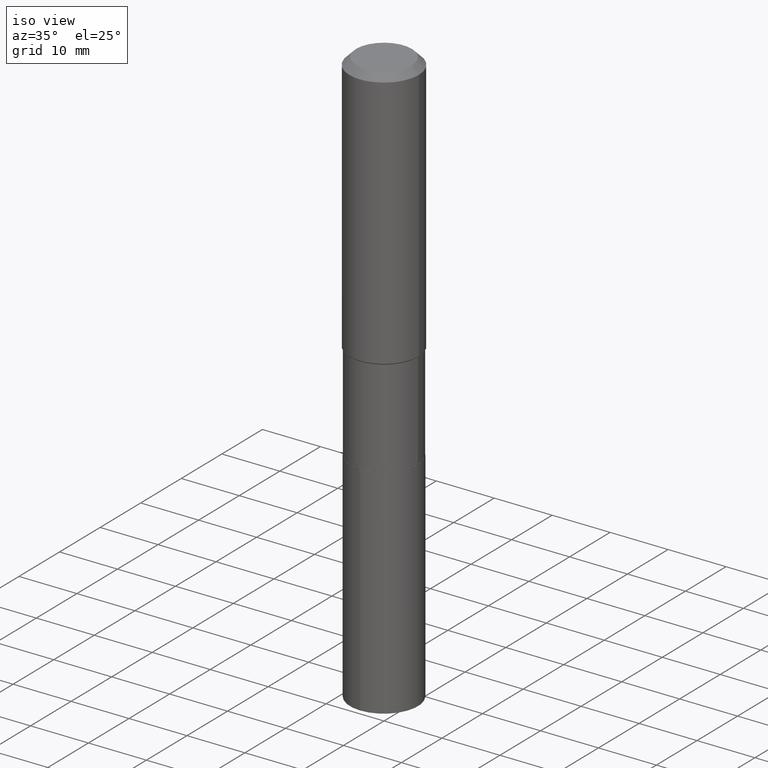
[diagram: clean part render]
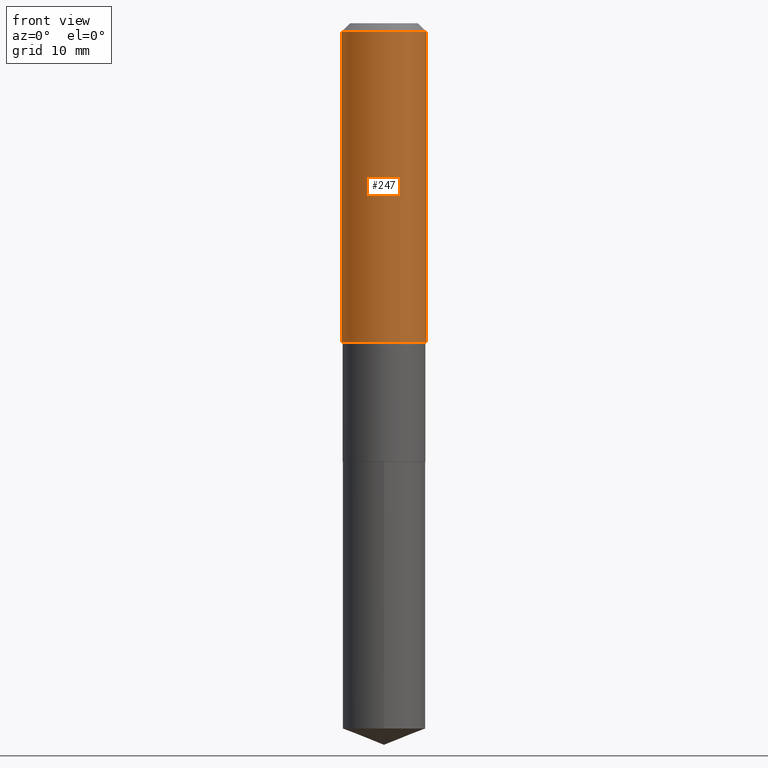
[diagram: tour spotlight — one face highlighted and labeled with its STEP entity id]
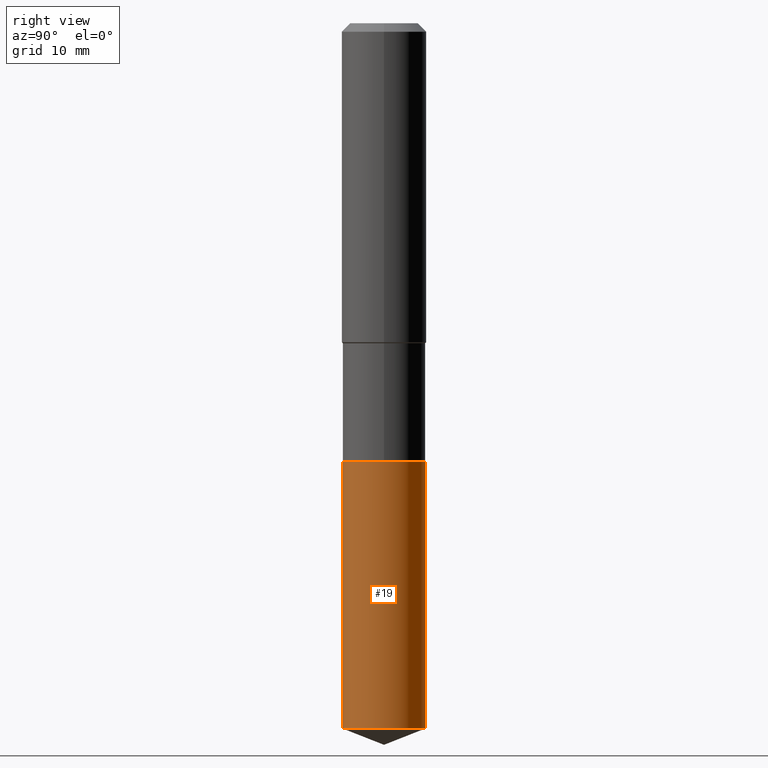
[diagram: tour spotlight — one face highlighted and labeled with its STEP entity id]
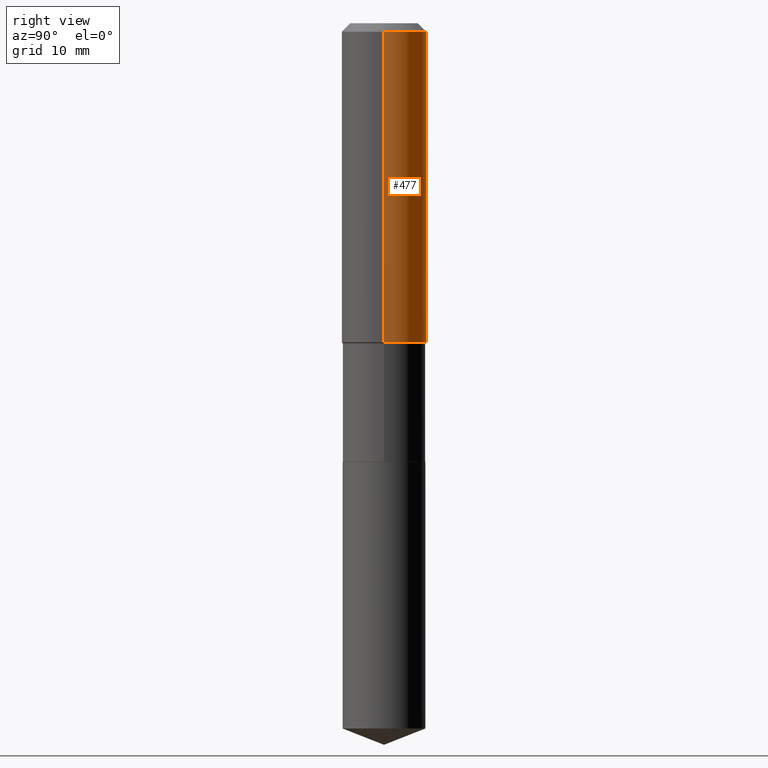
[diagram: tour spotlight — one face highlighted and labeled with its STEP entity id]
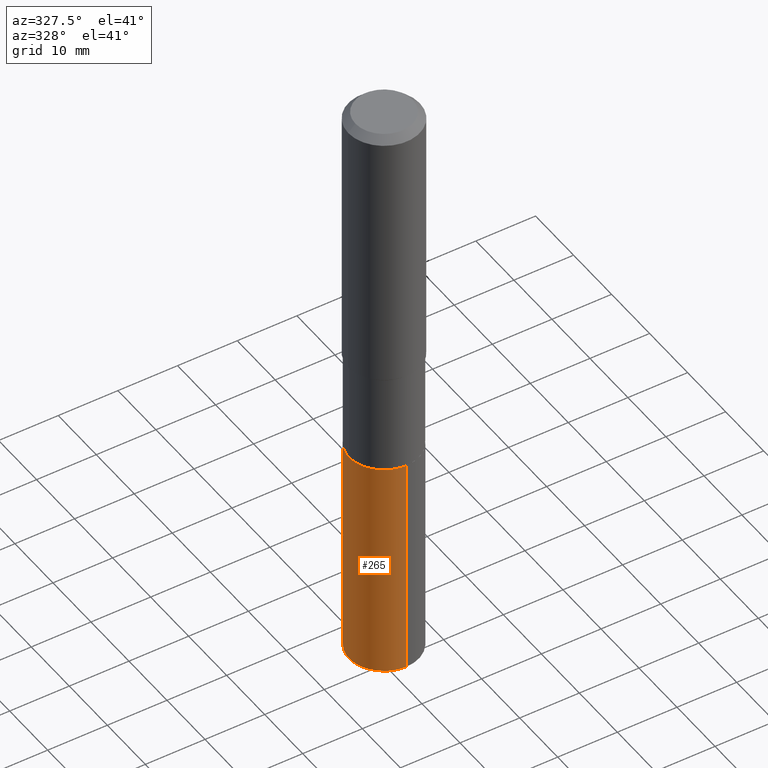
[diagram: tour spotlight — one face highlighted and labeled with its STEP entity id]
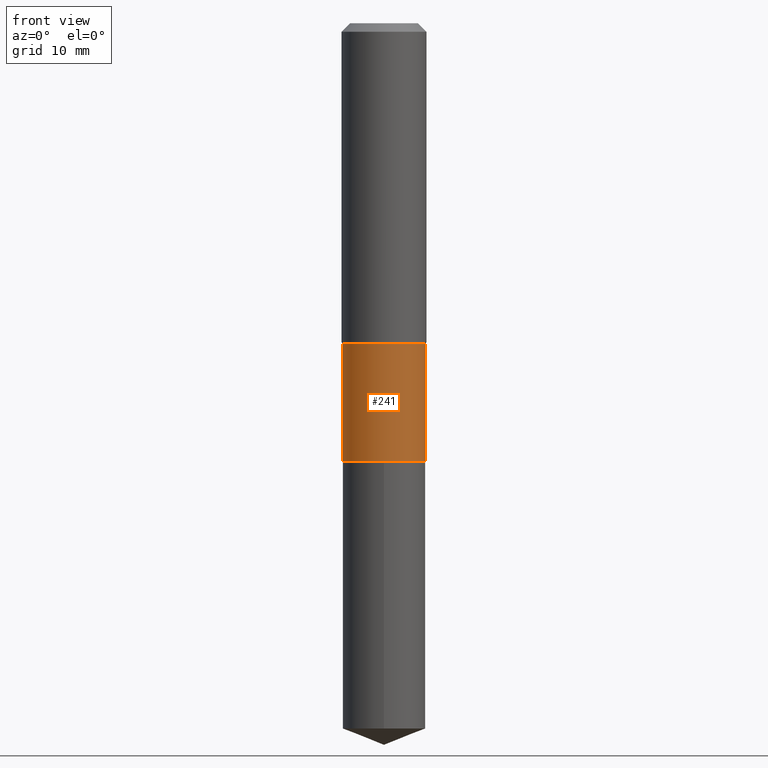
[diagram: tour spotlight — one face highlighted and labeled with its STEP entity id]
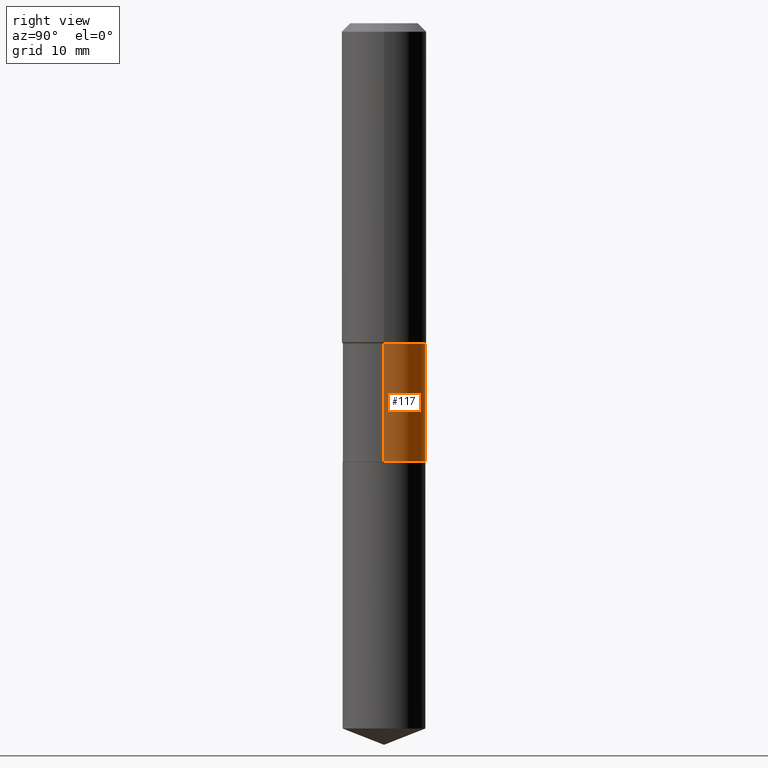
[diagram: tour spotlight — one face highlighted and labeled with its STEP entity id]
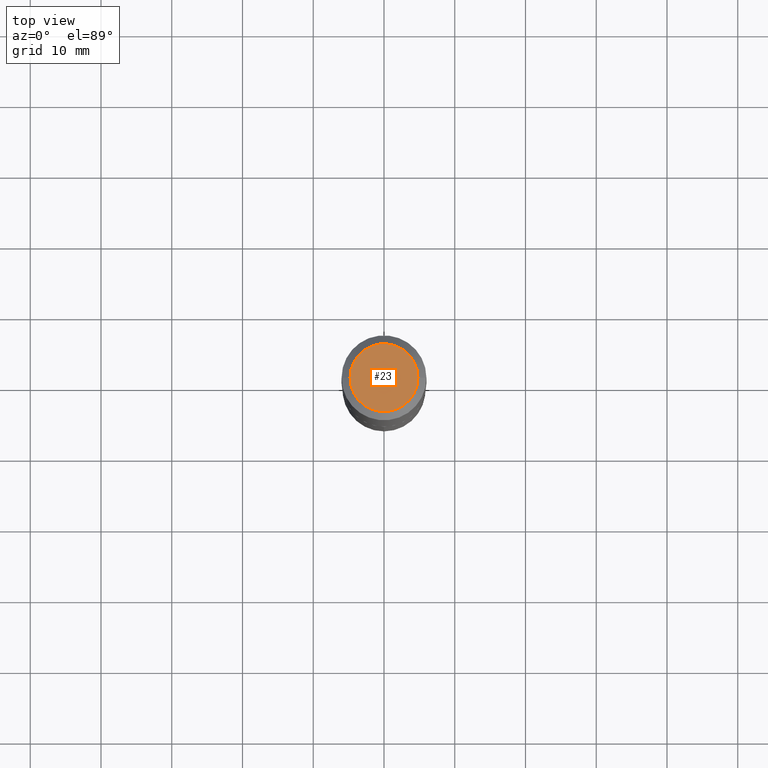
[diagram: tour spotlight — one face highlighted and labeled with its STEP entity id]
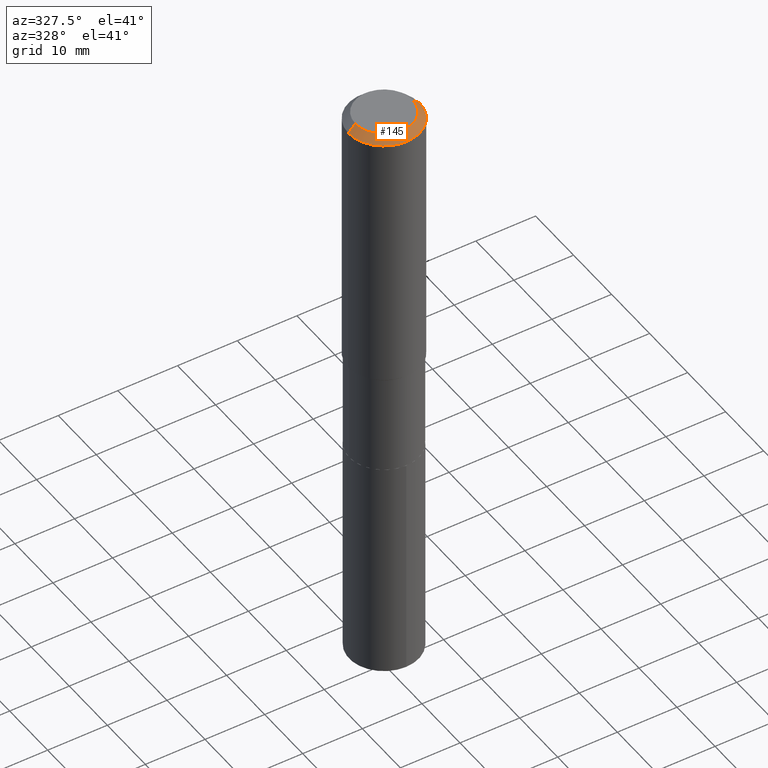
[diagram: tour spotlight — one face highlighted and labeled with its STEP entity id]
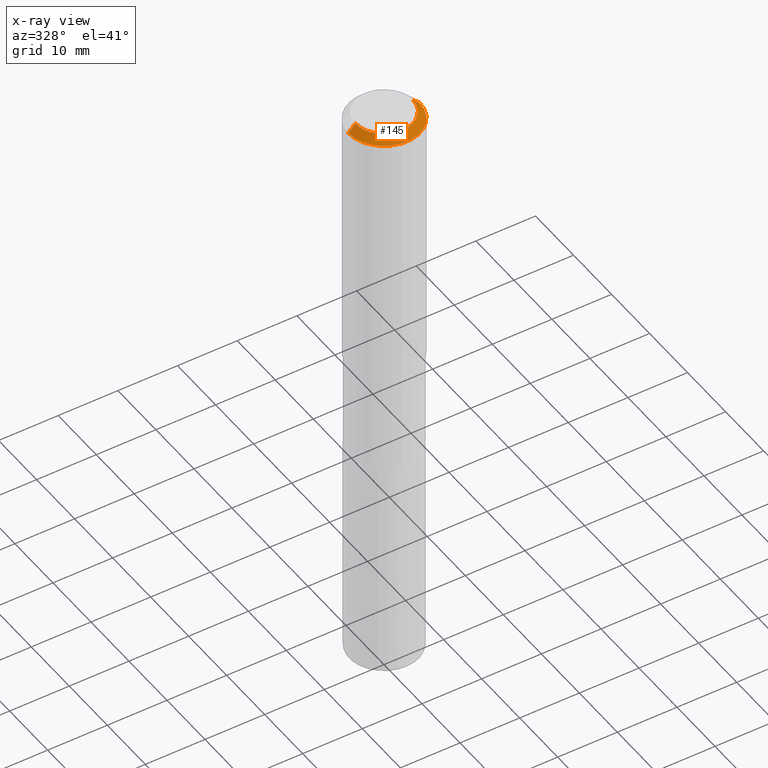
[diagram: x-ray of the same camera — body ghosted, this tour face saturated]
A machine part: a face-by-face anatomy tour. The part has 17 B-rep faces; the first image is the clean iso view, then the 8 largest visible faces are spotlighted one at a time (largest first), each with its STEP entity span.

Face 1 — front view, entity #247. In plain terms, the highlighted cylindrical surface (partial cylindrical patch) has radius 5.9995 mm, axis along (-0, 0, 1).
Definition (entity closure, byte-faithful):
#1 = CYLINDRICAL_SURFACE ( 'NONE', #33, 0.2362000000000001043 ) ;
#2 = ORIENTED_EDGE ( 'NONE', *, *, #67, .T. ) ;
#13 = DIRECTION ( 'NONE',  ( -2.445468806185136877E-29, 3.491481338843145188E-15, 1.000000000000000000 ) ) ;
#20 = CARTESIAN_POINT ( 'NONE',  ( 0.2362000000000001043, -1.649375784469496920E-15, 1.151752954443000508E-29 ) ) ;
#33 = AXIS2_PLACEMENT_3D ( 'NONE', #453, #89, #116 ) ;
#39 = FACE_OUTER_BOUND ( 'NONE', #450, .T. ) ;
#56 = DIRECTION ( 'NONE',  ( -2.445468806185136877E-29, 3.491481338843145188E-15, 1.000000000000000000 ) ) ;
#60 = VERTEX_POINT ( 'NONE', #429 ) ;
#67 = EDGE_CURVE ( 'NONE', #199, #344, #95, .T. ) ;
#84 = EDGE_CURVE ( 'NONE', #413, #344, #274, .T. ) ;
#89 = DIRECTION ( 'NONE',  ( -2.445468806185136597E-29, 3.491481338843145583E-15, 1.000000000000000000 ) ) ;
#95 = LINE ( 'NONE', #20, #424 ) ;
#101 = CARTESIAN_POINT ( 'NONE',  ( 0.2362000000000002153, -7.847802605317732432E-15, -1.775299999999999434 ) ) ;
#116 = DIRECTION ( 'NONE',  ( 1.000000000000000000, -6.982962677686266711E-15, 4.876176775795935793E-29 ) ) ;
#149 = ORIENTED_EDGE ( 'NONE', *, *, #84, .F. ) ;
#153 = CARTESIAN_POINT ( 'NONE',  ( 0.2361999999999999933, -1.814313362916447440E-15, -0.04724000000000028177 ) ) ;
#159 = ORIENTED_EDGE ( 'NONE', *, *, #488, .F. ) ;
#168 = DIRECTION ( 'NONE',  ( 1.000000000000000000, -6.982962677686266711E-15, 0.000000000000000000 ) ) ;
#177 = AXIS2_PLACEMENT_3D ( 'NONE', #270, #351, #168 ) ;
#199 = VERTEX_POINT ( 'NONE', #101 ) ;
#247 = ADVANCED_FACE ( 'NONE', ( #39 ), #1, .T. ) ;
#270 = CARTESIAN_POINT ( 'NONE',  ( 4.341440771620472019E-29, -6.198426820848235118E-15, -1.775299999999999434 ) ) ;
#274 = CIRCLE ( 'NONE', #441, 0.2361999999999999933 ) ;
#277 = CARTESIAN_POINT ( 'NONE',  ( -0.2361999999999999933, -1.503380257782235439E-15, -0.04724000000000028177 ) ) ;
#282 = CARTESIAN_POINT ( 'NONE',  ( -0.2362000000000001043, 1.678301941865357380E-15, -1.161852468318209317E-29 ) ) ;
#336 = ORIENTED_EDGE ( 'NONE', *, *, #432, .T. ) ;
#344 = VERTEX_POINT ( 'NONE', #153 ) ;
#351 = DIRECTION ( 'NONE',  ( -2.445468806185136597E-29, 3.491481338843145583E-15, 1.000000000000000000 ) ) ;
#372 = CIRCLE ( 'NONE', #177, 0.2362000000000002153 ) ;
#399 = DIRECTION ( 'NONE',  ( 1.000000000000000000, -6.982962677686266711E-15, 0.000000000000000000 ) ) ;
#402 = CARTESIAN_POINT ( 'NONE',  ( 1.155239464041865506E-30, -1.649375784469511859E-16, -0.04724000000000028177 ) ) ;
#413 = VERTEX_POINT ( 'NONE', #277 ) ;
#424 = VECTOR ( 'NONE', #13, 39.37007874015748143 ) ;
#429 = CARTESIAN_POINT ( 'NONE',  ( -0.2362000000000002153, -4.520124878982877146E-15, -1.775299999999999434 ) ) ;
#432 = EDGE_CURVE ( 'NONE', #60, #199, #372, .T. ) ;
#441 = AXIS2_PLACEMENT_3D ( 'NONE', #402, #471, #399 ) ;
#448 = VECTOR ( 'NONE', #56, 39.37007874015748143 ) ;
#450 = EDGE_LOOP ( 'NONE', ( #159, #336, #2, #149 ) ) ;
#453 = CARTESIAN_POINT ( 'NONE',  ( 0.000000000000000000, 0.000000000000000000, 0.000000000000000000 ) ) ;
#463 = LINE ( 'NONE', #282, #448 ) ;
#471 = DIRECTION ( 'NONE',  ( -2.445468806185136597E-29, 3.491481338843145583E-15, 1.000000000000000000 ) ) ;
#488 = EDGE_CURVE ( 'NONE', #60, #413, #463, .T. ) ;

Face 2 — right view, entity #19. In plain terms, the highlighted cylindrical surface (partial cylindrical patch) has radius 5.8496 mm, axis along (-0, 0, 1).
Definition (entity closure, byte-faithful):
#6 = AXIS2_PLACEMENT_3D ( 'NONE', #352, #126, #206 ) ;
#17 = EDGE_LOOP ( 'NONE', ( #470, #378, #46, #83 ) ) ;
#19 = ADVANCED_FACE ( 'NONE', ( #360 ), #52, .T. ) ;
#27 = LINE ( 'NONE', #31, #235 ) ;
#31 = CARTESIAN_POINT ( 'NONE',  ( -1.608176304671087313E-15, -0.2303000000000085257, -2.440899999999999181 ) ) ;
#46 = ORIENTED_EDGE ( 'NONE', *, *, #110, .F. ) ;
#49 = VERTEX_POINT ( 'NONE', #310 ) ;
#52 = CYLINDRICAL_SURFACE ( 'NONE', #6, 0.2303000000000000047 ) ;
#65 = AXIS2_PLACEMENT_3D ( 'NONE', #182, #321, #253 ) ;
#66 = CARTESIAN_POINT ( 'NONE',  ( 1.636379920455606805E-15, 0.2302999999999914560, -2.440900000000000514 ) ) ;
#83 = ORIENTED_EDGE ( 'NONE', *, *, #152, .F. ) ;
#91 = VERTEX_POINT ( 'NONE', #66 ) ;
#110 = EDGE_CURVE ( 'NONE', #131, #91, #299, .T. ) ;
#122 = DIRECTION ( 'NONE',  ( -2.445399602320894689E-29, 3.491580442715579660E-15, 1.000000000000000000 ) ) ;
#126 = DIRECTION ( 'NONE',  ( -2.445399602320894408E-29, 3.491580442715579660E-15, 1.000000000000000000 ) ) ;
#131 = VERTEX_POINT ( 'NONE', #291 ) ;
#135 = AXIS2_PLACEMENT_3D ( 'NONE', #175, #438, #382 ) ;
#152 = EDGE_CURVE ( 'NONE', #454, #131, #27, .T. ) ;
#175 = CARTESIAN_POINT ( 'NONE',  ( 9.598319362499793207E-29, -1.370414994418415615E-14, -3.924982417465879614 ) ) ;
#182 = CARTESIAN_POINT ( 'NONE',  ( 5.969144809017299038E-29, -8.522356799982232966E-15, -2.440900000000000070 ) ) ;
#189 = CARTESIAN_POINT ( 'NONE',  ( 1.636379920455570123E-15, 0.2302999999999914560, -2.440900000000000514 ) ) ;
#206 = DIRECTION ( 'NONE',  ( -6.982962677686265922E-15, -1.000000000000000000, 3.558638289619100968E-15 ) ) ;
#225 = EDGE_CURVE ( 'NONE', #454, #49, #480, .T. ) ;
#235 = VECTOR ( 'NONE', #442, 39.37007874015748143 ) ;
#253 = DIRECTION ( 'NONE',  ( -6.982962677686265922E-15, -1.000000000000000000, 3.558638289619100968E-15 ) ) ;
#291 = CARTESIAN_POINT ( 'NONE',  ( -1.608176304671087313E-15, -0.2303000000000085257, -2.440899999999999181 ) ) ;
#299 = CIRCLE ( 'NONE', #65, 0.2303000000000000047 ) ;
#305 = LINE ( 'NONE', #189, #381 ) ;
#310 = CARTESIAN_POINT ( 'NONE',  ( 1.636379920455606805E-15, 0.2302999999999863490, -3.924982417465880946 ) ) ;
#312 = CARTESIAN_POINT ( 'NONE',  ( -1.608176304671051222E-15, -0.2303000000000136882, -3.924982417465879170 ) ) ;
#318 = EDGE_CURVE ( 'NONE', #49, #91, #305, .T. ) ;
#321 = DIRECTION ( 'NONE',  ( -2.445399602320894408E-29, 3.491580442715579660E-15, 1.000000000000000000 ) ) ;
#352 = CARTESIAN_POINT ( 'NONE',  ( 5.969144809017299038E-29, -8.522356799982232966E-15, -2.440900000000000070 ) ) ;
#360 = FACE_OUTER_BOUND ( 'NONE', #17, .T. ) ;
#378 = ORIENTED_EDGE ( 'NONE', *, *, #318, .T. ) ;
#381 = VECTOR ( 'NONE', #122, 39.37007874015748143 ) ;
#382 = DIRECTION ( 'NONE',  ( -6.982962677686265922E-15, -1.000000000000000000, 2.372425526412734110E-15 ) ) ;
#438 = DIRECTION ( 'NONE',  ( -2.445399602320894408E-29, 3.491580442715579660E-15, 1.000000000000000000 ) ) ;
#442 = DIRECTION ( 'NONE',  ( -2.445399602320894689E-29, 3.491580442715579660E-15, 1.000000000000000000 ) ) ;
#454 = VERTEX_POINT ( 'NONE', #312 ) ;
#470 = ORIENTED_EDGE ( 'NONE', *, *, #225, .T. ) ;
#480 = CIRCLE ( 'NONE', #135, 0.2303000000000000047 ) ;

Face 3 — right view, entity #477. In plain terms, the highlighted cylindrical surface (partial cylindrical patch) has radius 5.9995 mm, axis along (-0, 0, 1).
Definition (entity closure, byte-faithful):
#4 = EDGE_CURVE ( 'NONE', #344, #413, #25, .T. ) ;
#11 = CARTESIAN_POINT ( 'NONE',  ( 4.341440771620472019E-29, -6.198426820848235118E-15, -1.775299999999999434 ) ) ;
#12 = DIRECTION ( 'NONE',  ( 1.000000000000000000, -6.982962677686266711E-15, 0.000000000000000000 ) ) ;
#13 = DIRECTION ( 'NONE',  ( -2.445468806185136877E-29, 3.491481338843145188E-15, 1.000000000000000000 ) ) ;
#14 = CIRCLE ( 'NONE', #58, 0.2362000000000002153 ) ;
#16 = DIRECTION ( 'NONE',  ( -2.445468806185136597E-29, 3.491481338843145583E-15, 1.000000000000000000 ) ) ;
#20 = CARTESIAN_POINT ( 'NONE',  ( 0.2362000000000001043, -1.649375784469496920E-15, 1.151752954443000508E-29 ) ) ;
#25 = CIRCLE ( 'NONE', #370, 0.2361999999999999933 ) ;
#29 = EDGE_CURVE ( 'NONE', #199, #60, #14, .T. ) ;
#54 = CYLINDRICAL_SURFACE ( 'NONE', #276, 0.2362000000000001043 ) ;
#55 = DIRECTION ( 'NONE',  ( -2.445468806185136597E-29, 3.491481338843145583E-15, 1.000000000000000000 ) ) ;
#56 = DIRECTION ( 'NONE',  ( -2.445468806185136877E-29, 3.491481338843145188E-15, 1.000000000000000000 ) ) ;
#58 = AXIS2_PLACEMENT_3D ( 'NONE', #11, #166, #12 ) ;
#60 = VERTEX_POINT ( 'NONE', #429 ) ;
#67 = EDGE_CURVE ( 'NONE', #199, #344, #95, .T. ) ;
#95 = LINE ( 'NONE', #20, #424 ) ;
#101 = CARTESIAN_POINT ( 'NONE',  ( 0.2362000000000002153, -7.847802605317732432E-15, -1.775299999999999434 ) ) ;
#120 = ORIENTED_EDGE ( 'NONE', *, *, #67, .F. ) ;
#125 = CARTESIAN_POINT ( 'NONE',  ( 1.155239464041865506E-30, -1.649375784469511859E-16, -0.04724000000000028177 ) ) ;
#153 = CARTESIAN_POINT ( 'NONE',  ( 0.2361999999999999933, -1.814313362916447440E-15, -0.04724000000000028177 ) ) ;
#166 = DIRECTION ( 'NONE',  ( -2.445468806185136597E-29, 3.491481338843145583E-15, 1.000000000000000000 ) ) ;
#199 = VERTEX_POINT ( 'NONE', #101 ) ;
#209 = ORIENTED_EDGE ( 'NONE', *, *, #4, .F. ) ;
#234 = DIRECTION ( 'NONE',  ( 1.000000000000000000, -6.982962677686266711E-15, 0.000000000000000000 ) ) ;
#237 = DIRECTION ( 'NONE',  ( 1.000000000000000000, -6.982962677686266711E-15, 4.876176775795935793E-29 ) ) ;
#263 = ORIENTED_EDGE ( 'NONE', *, *, #488, .T. ) ;
#276 = AXIS2_PLACEMENT_3D ( 'NONE', #353, #16, #237 ) ;
#277 = CARTESIAN_POINT ( 'NONE',  ( -0.2361999999999999933, -1.503380257782235439E-15, -0.04724000000000028177 ) ) ;
#282 = CARTESIAN_POINT ( 'NONE',  ( -0.2362000000000001043, 1.678301941865357380E-15, -1.161852468318209317E-29 ) ) ;
#308 = EDGE_LOOP ( 'NONE', ( #380, #263, #209, #120 ) ) ;
#344 = VERTEX_POINT ( 'NONE', #153 ) ;
#353 = CARTESIAN_POINT ( 'NONE',  ( 0.000000000000000000, 0.000000000000000000, 0.000000000000000000 ) ) ;
#370 = AXIS2_PLACEMENT_3D ( 'NONE', #125, #55, #234 ) ;
#380 = ORIENTED_EDGE ( 'NONE', *, *, #29, .T. ) ;
#413 = VERTEX_POINT ( 'NONE', #277 ) ;
#424 = VECTOR ( 'NONE', #13, 39.37007874015748143 ) ;
#429 = CARTESIAN_POINT ( 'NONE',  ( -0.2362000000000002153, -4.520124878982877146E-15, -1.775299999999999434 ) ) ;
#430 = FACE_OUTER_BOUND ( 'NONE', #308, .T. ) ;
#448 = VECTOR ( 'NONE', #56, 39.37007874015748143 ) ;
#463 = LINE ( 'NONE', #282, #448 ) ;
#477 = ADVANCED_FACE ( 'NONE', ( #430 ), #54, .T. ) ;
#488 = EDGE_CURVE ( 'NONE', #60, #413, #463, .T. ) ;

Face 4 — auxiliary view, entity #265. In plain terms, the highlighted cylindrical surface (partial cylindrical patch) has radius 5.8496 mm, axis along (-0, 0, 1).
Definition (entity closure, byte-faithful):
#27 = LINE ( 'NONE', #31, #235 ) ;
#31 = CARTESIAN_POINT ( 'NONE',  ( -1.608176304671087313E-15, -0.2303000000000085257, -2.440899999999999181 ) ) ;
#37 = ORIENTED_EDGE ( 'NONE', *, *, #59, .T. ) ;
#40 = AXIS2_PLACEMENT_3D ( 'NONE', #464, #279, #133 ) ;
#49 = VERTEX_POINT ( 'NONE', #310 ) ;
#59 = EDGE_CURVE ( 'NONE', #49, #454, #314, .T. ) ;
#66 = CARTESIAN_POINT ( 'NONE',  ( 1.636379920455606805E-15, 0.2302999999999914560, -2.440900000000000514 ) ) ;
#80 = DIRECTION ( 'NONE',  ( -6.982962677686265922E-15, -1.000000000000000000, 3.558638289619100968E-15 ) ) ;
#91 = VERTEX_POINT ( 'NONE', #66 ) ;
#93 = AXIS2_PLACEMENT_3D ( 'NONE', #320, #403, #186 ) ;
#119 = FACE_OUTER_BOUND ( 'NONE', #246, .T. ) ;
#122 = DIRECTION ( 'NONE',  ( -2.445399602320894689E-29, 3.491580442715579660E-15, 1.000000000000000000 ) ) ;
#131 = VERTEX_POINT ( 'NONE', #291 ) ;
#133 = DIRECTION ( 'NONE',  ( -6.982962677686265922E-15, -1.000000000000000000, 2.372425526412734110E-15 ) ) ;
#152 = EDGE_CURVE ( 'NONE', #454, #131, #27, .T. ) ;
#170 = CIRCLE ( 'NONE', #93, 0.2303000000000000047 ) ;
#181 = EDGE_CURVE ( 'NONE', #91, #131, #170, .T. ) ;
#186 = DIRECTION ( 'NONE',  ( -6.982962677686265922E-15, -1.000000000000000000, 3.558638289619100968E-15 ) ) ;
#189 = CARTESIAN_POINT ( 'NONE',  ( 1.636379920455570123E-15, 0.2302999999999914560, -2.440900000000000514 ) ) ;
#195 = ORIENTED_EDGE ( 'NONE', *, *, #181, .F. ) ;
#235 = VECTOR ( 'NONE', #442, 39.37007874015748143 ) ;
#246 = EDGE_LOOP ( 'NONE', ( #468, #37, #397, #195 ) ) ;
#265 = ADVANCED_FACE ( 'NONE', ( #119 ), #412, .T. ) ;
#279 = DIRECTION ( 'NONE',  ( -2.445399602320894408E-29, 3.491580442715579660E-15, 1.000000000000000000 ) ) ;
#291 = CARTESIAN_POINT ( 'NONE',  ( -1.608176304671087313E-15, -0.2303000000000085257, -2.440899999999999181 ) ) ;
#305 = LINE ( 'NONE', #189, #381 ) ;
#310 = CARTESIAN_POINT ( 'NONE',  ( 1.636379920455606805E-15, 0.2302999999999863490, -3.924982417465880946 ) ) ;
#312 = CARTESIAN_POINT ( 'NONE',  ( -1.608176304671051222E-15, -0.2303000000000136882, -3.924982417465879170 ) ) ;
#314 = CIRCLE ( 'NONE', #40, 0.2303000000000000047 ) ;
#318 = EDGE_CURVE ( 'NONE', #49, #91, #305, .T. ) ;
#320 = CARTESIAN_POINT ( 'NONE',  ( 5.969144809017299038E-29, -8.522356799982232966E-15, -2.440900000000000070 ) ) ;
#330 = DIRECTION ( 'NONE',  ( -2.445399602320894408E-29, 3.491580442715579660E-15, 1.000000000000000000 ) ) ;
#345 = AXIS2_PLACEMENT_3D ( 'NONE', #485, #330, #80 ) ;
#381 = VECTOR ( 'NONE', #122, 39.37007874015748143 ) ;
#397 = ORIENTED_EDGE ( 'NONE', *, *, #152, .T. ) ;
#403 = DIRECTION ( 'NONE',  ( -2.445399602320894408E-29, 3.491580442715579660E-15, 1.000000000000000000 ) ) ;
#412 = CYLINDRICAL_SURFACE ( 'NONE', #345, 0.2303000000000000047 ) ;
#442 = DIRECTION ( 'NONE',  ( -2.445399602320894689E-29, 3.491580442715579660E-15, 1.000000000000000000 ) ) ;
#454 = VERTEX_POINT ( 'NONE', #312 ) ;
#464 = CARTESIAN_POINT ( 'NONE',  ( 9.598319362499793207E-29, -1.370414994418415615E-14, -3.924982417465879614 ) ) ;
#468 = ORIENTED_EDGE ( 'NONE', *, *, #318, .F. ) ;
#485 = CARTESIAN_POINT ( 'NONE',  ( 5.969144809017299038E-29, -8.522356799982232966E-15, -2.440900000000000070 ) ) ;

Face 5 — front view, entity #241. In plain terms, the highlighted cylindrical surface (partial cylindrical patch) has radius 5.8496 mm, axis along (-0, 0, 1).
Definition (entity closure, byte-faithful):
#57 = VERTEX_POINT ( 'NONE', #239 ) ;
#64 = EDGE_CURVE ( 'NONE', #191, #273, #207, .T. ) ;
#73 = VECTOR ( 'NONE', #355, 39.37007874015748143 ) ;
#75 = EDGE_CURVE ( 'NONE', #333, #57, #434, .T. ) ;
#82 = CARTESIAN_POINT ( 'NONE',  ( -0.2302999999999999214, -5.733438889574600189E-15, -1.781199999999999894 ) ) ;
#108 = CARTESIAN_POINT ( 'NONE',  ( -0.2303000000000000047, -5.733438889574600189E-15, -2.440399999999999903 ) ) ;
#124 = DIRECTION ( 'NONE',  ( 1.000000000000000000, -6.982962677686265922E-15, 0.000000000000000000 ) ) ;
#132 = DIRECTION ( 'NONE',  ( -2.445468806185136597E-29, 3.491481338843145583E-15, 1.000000000000000000 ) ) ;
#151 = CIRCLE ( 'NONE', #221, 0.2303000000000000047 ) ;
#156 = CARTESIAN_POINT ( 'NONE',  ( 0.000000000000000000, 0.000000000000000000, 0.000000000000000000 ) ) ;
#187 = AXIS2_PLACEMENT_3D ( 'NONE', #156, #260, #194 ) ;
#191 = VERTEX_POINT ( 'NONE', #108 ) ;
#194 = DIRECTION ( 'NONE',  ( 1.000000000000000000, -6.982962677686266711E-15, 4.876176775795935793E-29 ) ) ;
#200 = CIRCLE ( 'NONE', #284, 0.2302999999999999214 ) ;
#205 = CARTESIAN_POINT ( 'NONE',  ( 5.967922074614207358E-29, -8.520611059312812251E-15, -2.440399999999999903 ) ) ;
#207 = LINE ( 'NONE', #283, #73 ) ;
#221 = AXIS2_PLACEMENT_3D ( 'NONE', #205, #132, #124 ) ;
#223 = CARTESIAN_POINT ( 'NONE',  ( 4.355869037576965171E-29, -6.219026560747410438E-15, -1.781199999999999894 ) ) ;
#239 = CARTESIAN_POINT ( 'NONE',  ( 0.2302999999999999214, -7.827202865418557901E-15, -1.781199999999999894 ) ) ;
#241 = ADVANCED_FACE ( 'NONE', ( #451 ), #414, .T. ) ;
#260 = DIRECTION ( 'NONE',  ( -2.445468806185136597E-29, 3.491481338843145583E-15, 1.000000000000000000 ) ) ;
#273 = VERTEX_POINT ( 'NONE', #82 ) ;
#278 = EDGE_CURVE ( 'NONE', #273, #57, #200, .T. ) ;
#283 = CARTESIAN_POINT ( 'NONE',  ( -0.2302999999999999770, 1.636379920455510564E-15, -1.132830751285704610E-29 ) ) ;
#284 = AXIS2_PLACEMENT_3D ( 'NONE', #223, #447, #444 ) ;
#333 = VERTEX_POINT ( 'NONE', #373 ) ;
#342 = ORIENTED_EDGE ( 'NONE', *, *, #64, .F. ) ;
#348 = ORIENTED_EDGE ( 'NONE', *, *, #278, .F. ) ;
#355 = DIRECTION ( 'NONE',  ( -2.445468806185136877E-29, 3.491481338843145188E-15, 1.000000000000000000 ) ) ;
#373 = CARTESIAN_POINT ( 'NONE',  ( 0.2303000000000000047, -1.012878736398395971E-14, -2.440399999999999903 ) ) ;
#384 = ORIENTED_EDGE ( 'NONE', *, *, #419, .T. ) ;
#414 = CYLINDRICAL_SURFACE ( 'NONE', #187, 0.2302999999999999770 ) ;
#418 = EDGE_LOOP ( 'NONE', ( #342, #384, #445, #348 ) ) ;
#419 = EDGE_CURVE ( 'NONE', #191, #333, #151, .T. ) ;
#434 = LINE ( 'NONE', #476, #435 ) ;
#435 = VECTOR ( 'NONE', #439, 39.37007874015748143 ) ;
#439 = DIRECTION ( 'NONE',  ( -2.445468806185136877E-29, 3.491481338843145188E-15, 1.000000000000000000 ) ) ;
#444 = DIRECTION ( 'NONE',  ( 1.000000000000000000, -6.982962677686268288E-15, 0.000000000000000000 ) ) ;
#445 = ORIENTED_EDGE ( 'NONE', *, *, #75, .T. ) ;
#447 = DIRECTION ( 'NONE',  ( -2.445468806185136597E-29, 3.491481338843145583E-15, 1.000000000000000000 ) ) ;
#451 = FACE_OUTER_BOUND ( 'NONE', #418, .T. ) ;
#476 = CARTESIAN_POINT ( 'NONE',  ( 0.2302999999999999770, -1.608176304671147069E-15, 1.122983511465803858E-29 ) ) ;

Face 6 — right view, entity #117. In plain terms, the highlighted cylindrical surface (partial cylindrical patch) has radius 5.8496 mm, axis along (-0, 0, 1).
Definition (entity closure, byte-faithful):
#7 = CIRCLE ( 'NONE', #150, 0.2302999999999999214 ) ;
#57 = VERTEX_POINT ( 'NONE', #239 ) ;
#62 = CARTESIAN_POINT ( 'NONE',  ( 5.967922074614207358E-29, -8.520611059312812251E-15, -2.440399999999999903 ) ) ;
#64 = EDGE_CURVE ( 'NONE', #191, #273, #207, .T. ) ;
#70 = DIRECTION ( 'NONE',  ( -2.445468806185136597E-29, 3.491481338843145583E-15, 1.000000000000000000 ) ) ;
#73 = VECTOR ( 'NONE', #355, 39.37007874015748143 ) ;
#75 = EDGE_CURVE ( 'NONE', #333, #57, #434, .T. ) ;
#82 = CARTESIAN_POINT ( 'NONE',  ( -0.2302999999999999214, -5.733438889574600189E-15, -1.781199999999999894 ) ) ;
#103 = AXIS2_PLACEMENT_3D ( 'NONE', #62, #475, #249 ) ;
#108 = CARTESIAN_POINT ( 'NONE',  ( -0.2303000000000000047, -5.733438889574600189E-15, -2.440399999999999903 ) ) ;
#117 = ADVANCED_FACE ( 'NONE', ( #139 ), #369, .T. ) ;
#137 = CARTESIAN_POINT ( 'NONE',  ( 0.000000000000000000, 0.000000000000000000, 0.000000000000000000 ) ) ;
#138 = EDGE_CURVE ( 'NONE', #333, #191, #335, .T. ) ;
#139 = FACE_OUTER_BOUND ( 'NONE', #230, .T. ) ;
#141 = ORIENTED_EDGE ( 'NONE', *, *, #75, .F. ) ;
#150 = AXIS2_PLACEMENT_3D ( 'NONE', #328, #70, #325 ) ;
#164 = EDGE_CURVE ( 'NONE', #57, #273, #7, .T. ) ;
#191 = VERTEX_POINT ( 'NONE', #108 ) ;
#207 = LINE ( 'NONE', #283, #73 ) ;
#230 = EDGE_LOOP ( 'NONE', ( #391, #431, #242, #141 ) ) ;
#239 = CARTESIAN_POINT ( 'NONE',  ( 0.2302999999999999214, -7.827202865418557901E-15, -1.781199999999999894 ) ) ;
#242 = ORIENTED_EDGE ( 'NONE', *, *, #164, .F. ) ;
#249 = DIRECTION ( 'NONE',  ( 1.000000000000000000, -6.982962677686265922E-15, 0.000000000000000000 ) ) ;
#273 = VERTEX_POINT ( 'NONE', #82 ) ;
#283 = CARTESIAN_POINT ( 'NONE',  ( -0.2302999999999999770, 1.636379920455510564E-15, -1.132830751285704610E-29 ) ) ;
#293 = DIRECTION ( 'NONE',  ( 1.000000000000000000, -6.982962677686266711E-15, 4.876176775795935793E-29 ) ) ;
#325 = DIRECTION ( 'NONE',  ( 1.000000000000000000, -6.982962677686268288E-15, 0.000000000000000000 ) ) ;
#328 = CARTESIAN_POINT ( 'NONE',  ( 4.355869037576965171E-29, -6.219026560747410438E-15, -1.781199999999999894 ) ) ;
#333 = VERTEX_POINT ( 'NONE', #373 ) ;
#335 = CIRCLE ( 'NONE', #103, 0.2303000000000000047 ) ;
#355 = DIRECTION ( 'NONE',  ( -2.445468806185136877E-29, 3.491481338843145188E-15, 1.000000000000000000 ) ) ;
#363 = AXIS2_PLACEMENT_3D ( 'NONE', #137, #368, #293 ) ;
#368 = DIRECTION ( 'NONE',  ( -2.445468806185136597E-29, 3.491481338843145583E-15, 1.000000000000000000 ) ) ;
#369 = CYLINDRICAL_SURFACE ( 'NONE', #363, 0.2302999999999999770 ) ;
#373 = CARTESIAN_POINT ( 'NONE',  ( 0.2303000000000000047, -1.012878736398395971E-14, -2.440399999999999903 ) ) ;
#391 = ORIENTED_EDGE ( 'NONE', *, *, #138, .T. ) ;
#431 = ORIENTED_EDGE ( 'NONE', *, *, #64, .T. ) ;
#434 = LINE ( 'NONE', #476, #435 ) ;
#435 = VECTOR ( 'NONE', #439, 39.37007874015748143 ) ;
#439 = DIRECTION ( 'NONE',  ( -2.445468806185136877E-29, 3.491481338843145188E-15, 1.000000000000000000 ) ) ;
#475 = DIRECTION ( 'NONE',  ( -2.445468806185136597E-29, 3.491481338843145583E-15, 1.000000000000000000 ) ) ;
#476 = CARTESIAN_POINT ( 'NONE',  ( 0.2302999999999999770, -1.608176304671147069E-15, 1.122983511465803858E-29 ) ) ;

Face 7 — top view, entity #23. In plain terms, the highlighted planar face has unit normal (0, -0, -1).
Definition (entity closure, byte-faithful):
#3 = CARTESIAN_POINT ( 'NONE',  ( -9.427742298522546243E-47, 1.346031739168365344E-32, 3.855188123715862256E-18 ) ) ;
#22 = DIRECTION ( 'NONE',  ( 1.000000000000000000, -6.982962677686266711E-15, 4.876185090822587894E-29 ) ) ;
#23 = ADVANCED_FACE ( 'NONE', ( #211 ), #319, .F. ) ;
#36 = DIRECTION ( 'NONE',  ( 1.000000000000000000, -6.982962677686266711E-15, 4.876185090822587894E-29 ) ) ;
#94 = DIRECTION ( 'NONE',  ( 2.438088387897960049E-29, -3.491481338843145188E-15, -1.000000000000000000 ) ) ;
#142 = AXIS2_PLACEMENT_3D ( 'NONE', #213, #362, #22 ) ;
#176 = AXIS2_PLACEMENT_3D ( 'NONE', #3, #376, #36 ) ;
#202 = EDGE_CURVE ( 'NONE', #393, #233, #256, .T. ) ;
#203 = DIRECTION ( 'NONE',  ( -1.000000000000000000, 6.982962677686265922E-15, -4.876176775795935793E-29 ) ) ;
#211 = FACE_OUTER_BOUND ( 'NONE', #459, .T. ) ;
#213 = CARTESIAN_POINT ( 'NONE',  ( -9.427742298522546243E-47, 1.346031739168365344E-32, 3.855188123715862256E-18 ) ) ;
#219 = AXIS2_PLACEMENT_3D ( 'NONE', #387, #94, #203 ) ;
#233 = VERTEX_POINT ( 'NONE', #298 ) ;
#256 = CIRCLE ( 'NONE', #142, 0.1889600000000000168 ) ;
#281 = ORIENTED_EDGE ( 'NONE', *, *, #288, .T. ) ;
#288 = EDGE_CURVE ( 'NONE', #233, #393, #388, .T. ) ;
#298 = CARTESIAN_POINT ( 'NONE',  ( -0.1889600000000000168, 1.401969416799070942E-15, 3.855188123706346622E-18 ) ) ;
#319 = PLANE ( 'NONE',  #219 ) ;
#326 = ORIENTED_EDGE ( 'NONE', *, *, #202, .T. ) ;
#362 = DIRECTION ( 'NONE',  ( -2.445468806185136597E-29, 3.491481338843145583E-15, 1.000000000000000000 ) ) ;
#376 = DIRECTION ( 'NONE',  ( -2.445468806185136597E-29, 3.491481338843145583E-15, 1.000000000000000000 ) ) ;
#387 = CARTESIAN_POINT ( 'NONE',  ( -4.713871149261273121E-47, 6.730158695841826722E-33, 1.927594061857931128E-18 ) ) ;
#388 = CIRCLE ( 'NONE', #176, 0.1889600000000000168 ) ;
#393 = VERTEX_POINT ( 'NONE', #433 ) ;
#433 = CARTESIAN_POINT ( 'NONE',  ( 0.1889600000000000168, -1.540873453589747738E-15, 3.855188123725863225E-18 ) ) ;
#459 = EDGE_LOOP ( 'NONE', ( #281, #326 ) ) ;

Face 8 — auxiliary view, entity #145. An x-ray twin of the same camera follows (body ghosted, this face saturated) — the face is partly hidden behind the body. In plain terms, the highlighted conical surface has half-angle 45 deg.
Definition (entity closure, byte-faithful):
#3 = CARTESIAN_POINT ( 'NONE',  ( -9.427742298522546243E-47, 1.346031739168365344E-32, 3.855188123715862256E-18 ) ) ;
#36 = DIRECTION ( 'NONE',  ( 1.000000000000000000, -6.982962677686266711E-15, 4.876185090822587894E-29 ) ) ;
#84 = EDGE_CURVE ( 'NONE', #413, #344, #274, .T. ) ;
#98 = ORIENTED_EDGE ( 'NONE', *, *, #84, .T. ) ;
#106 = DIRECTION ( 'NONE',  ( -0.7071067811865453523, 2.468850131082234184E-15, -0.7071067811865496822 ) ) ;
#113 = EDGE_CURVE ( 'NONE', #233, #413, #217, .T. ) ;
#128 = AXIS2_PLACEMENT_3D ( 'NONE', #214, #287, #365 ) ;
#145 = ADVANCED_FACE ( 'NONE', ( #218 ), #227, .T. ) ;
#153 = CARTESIAN_POINT ( 'NONE',  ( 0.2361999999999999933, -1.814313362916447440E-15, -0.04724000000000028177 ) ) ;
#176 = AXIS2_PLACEMENT_3D ( 'NONE', #3, #376, #36 ) ;
#214 = CARTESIAN_POINT ( 'NONE',  ( 1.155239464041865506E-30, -1.649375784469511859E-16, -0.04724000000000028177 ) ) ;
#217 = LINE ( 'NONE', #405, #327 ) ;
#218 = FACE_OUTER_BOUND ( 'NONE', #456, .T. ) ;
#226 = ORIENTED_EDGE ( 'NONE', *, *, #428, .F. ) ;
#227 = CONICAL_SURFACE ( 'NONE', #128, 0.2361999999999999933, 0.7853981633974452814 ) ;
#233 = VERTEX_POINT ( 'NONE', #298 ) ;
#271 = ORIENTED_EDGE ( 'NONE', *, *, #288, .F. ) ;
#274 = CIRCLE ( 'NONE', #441, 0.2361999999999999933 ) ;
#277 = CARTESIAN_POINT ( 'NONE',  ( -0.2361999999999999933, -1.503380257782235439E-15, -0.04724000000000028177 ) ) ;
#280 = DIRECTION ( 'NONE',  ( 0.7071067811865453523, -7.319954787623248157E-15, -0.7071067811865496822 ) ) ;
#287 = DIRECTION ( 'NONE',  ( 2.445468806185136597E-29, -3.491481338843145583E-15, -1.000000000000000000 ) ) ;
#288 = EDGE_CURVE ( 'NONE', #233, #393, #388, .T. ) ;
#298 = CARTESIAN_POINT ( 'NONE',  ( -0.1889600000000000168, 1.401969416799070942E-15, 3.855188123706346622E-18 ) ) ;
#327 = VECTOR ( 'NONE', #106, 39.37007874015748143 ) ;
#344 = VERTEX_POINT ( 'NONE', #153 ) ;
#365 = DIRECTION ( 'NONE',  ( -1.000000000000000000, 6.982962677686266711E-15, 0.000000000000000000 ) ) ;
#376 = DIRECTION ( 'NONE',  ( -2.445468806185136597E-29, 3.491481338843145583E-15, 1.000000000000000000 ) ) ;
#388 = CIRCLE ( 'NONE', #176, 0.1889600000000000168 ) ;
#393 = VERTEX_POINT ( 'NONE', #433 ) ;
#395 = VECTOR ( 'NONE', #280, 39.37007874015748143 ) ;
#399 = DIRECTION ( 'NONE',  ( 1.000000000000000000, -6.982962677686266711E-15, 0.000000000000000000 ) ) ;
#402 = CARTESIAN_POINT ( 'NONE',  ( 1.155239464041865506E-30, -1.649375784469511859E-16, -0.04724000000000028177 ) ) ;
#405 = CARTESIAN_POINT ( 'NONE',  ( -0.2361999999999999933, 1.484438206022545019E-15, -0.04724000000000028177 ) ) ;
#411 = ORIENTED_EDGE ( 'NONE', *, *, #113, .T. ) ;
#413 = VERTEX_POINT ( 'NONE', #277 ) ;
#427 = LINE ( 'NONE', #469, #395 ) ;
#428 = EDGE_CURVE ( 'NONE', #393, #344, #427, .T. ) ;
#433 = CARTESIAN_POINT ( 'NONE',  ( 0.1889600000000000168, -1.540873453589747738E-15, 3.855188123725863225E-18 ) ) ;
#441 = AXIS2_PLACEMENT_3D ( 'NONE', #402, #471, #399 ) ;
#456 = EDGE_LOOP ( 'NONE', ( #226, #271, #411, #98 ) ) ;
#469 = CARTESIAN_POINT ( 'NONE',  ( 0.2361999999999999933, -1.785387205520586782E-15, -0.04724000000000028177 ) ) ;
#471 = DIRECTION ( 'NONE',  ( -2.445468806185136597E-29, 3.491481338843145583E-15, 1.000000000000000000 ) ) ;